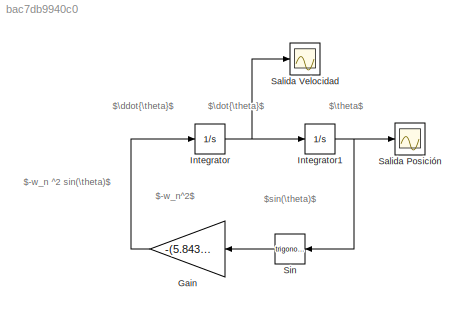
MODEL slx_bac7db9940c0
KIND model
CONFIG AbsTol = auto
CONFIG EnableMultiTasking = off
CONFIG FixedStep = auto
CONFIG MaxStep = 1.5/57
CONFIG MinStep = 0.02459
CONFIG RelTol = 1e-3
CONFIG SampleTimeConstraint = Unconstrained
CONFIG SolverName = ode45
CONFIG StartTime = 0.0
CONFIG StopTime = 1.5
BLOCK [Gain] Gain
  Gain = -(5.8437)^2
  NameLocation = top
BLOCK [Integrator] Integrator
BLOCK [Integrator] Integrator1
  InitialCondition = 0.2531
BLOCK [Scope] Salida Posición
  Floating = off
  NumInputPorts = 1
  ScopeSpecificationString = Simulink.scopes.TimeScopeBlockCfg('CurrentConfiguration', extmgr.ConfigurationSet(extmgr.Configuration('Core','General UI',true),extmgr.Configuration('Core','Source UI',true),extmgr.Configuration('Sources','WiredSimulink',true,'DataLogging',true,'DataLoggingVariableName','pos_pq','DataLoggingSaveFormat','Array'),extmgr.Configuration('Visuals','Time Domain',true,'SerializedDisplays',{struct('MinYLi...<+1443ch>
BLOCK [Scope] Salida Velocidad
  Floating = off
  NumInputPorts = 1
  ScopeSpecificationString = Simulink.scopes.TimeScopeBlockCfg('CurrentConfiguration', extmgr.ConfigurationSet(extmgr.Configuration('Core','General UI',true),extmgr.Configuration('Core','Source UI',true),extmgr.Configuration('Sources','WiredSimulink',true,'DataLogging',true,'DataLoggingVariableName','vel_pq','DataLoggingSaveFormat','Array'),extmgr.Configuration('Visuals','Time Domain',true,'SerializedDisplays',{struct('MinYLi...<+1442ch>
BLOCK [Trigonometry] Sin
  NameLocation = top
ANNOTATION (root): $-w_n ^2 sin(\theta)$
ANNOTATION (root): $-w_n^2$
ANNOTATION (root): $\ddot{\theta}$
ANNOTATION (root): $\dot{\theta}$
ANNOTATION (root): $\theta$
ANNOTATION (root): $sin(\theta)$
LINE Gain:1 -> Integrator:1
NET Integrator1:1 -> Salida Posición:1, Sin:1
NET Integrator:1 -> Integrator1:1, Salida Velocidad:1
LINE Sin:1 -> Gain:1
note: NET lines group one-source signal fan-out (src -> all destinations, sorted); 1:1 wires keep LINE
